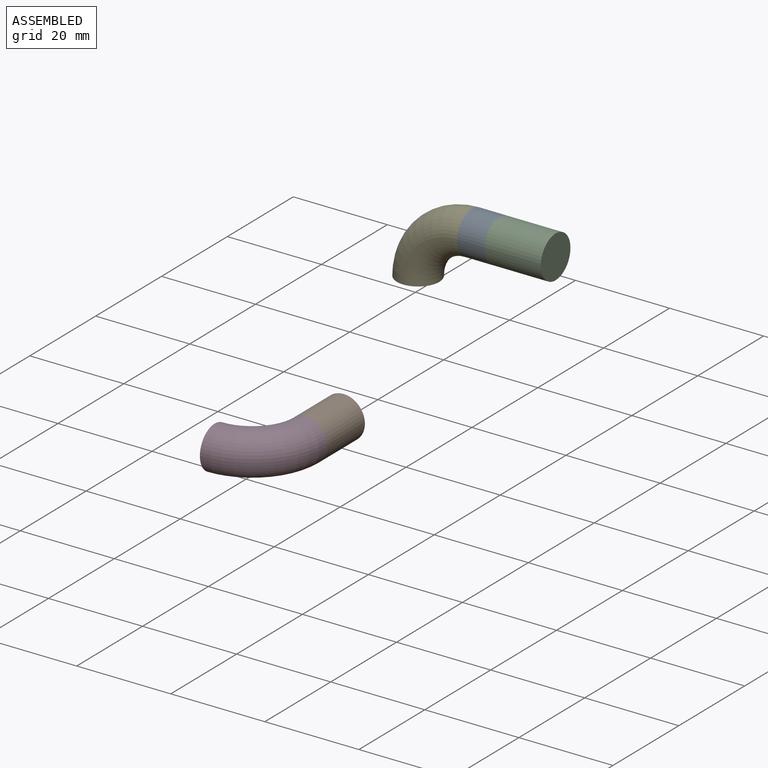
[diagram: assembled view]
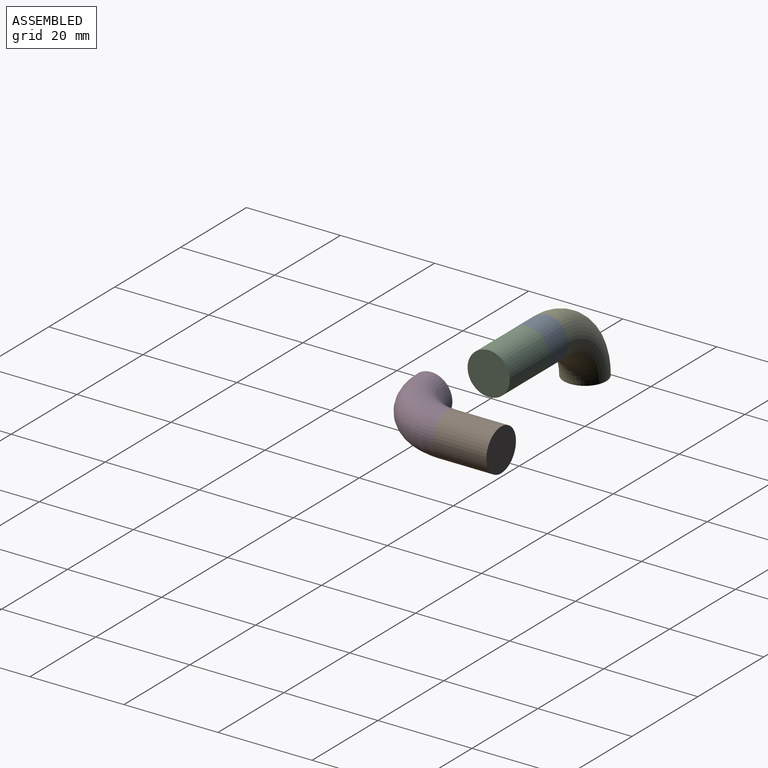
[diagram: assembled view, second angle]
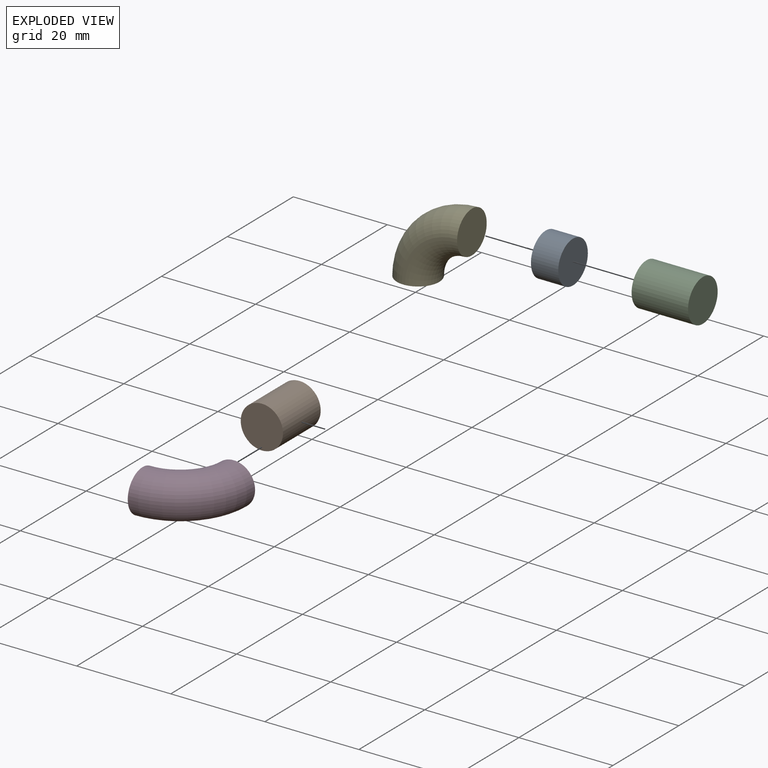
[diagram: exploded view]
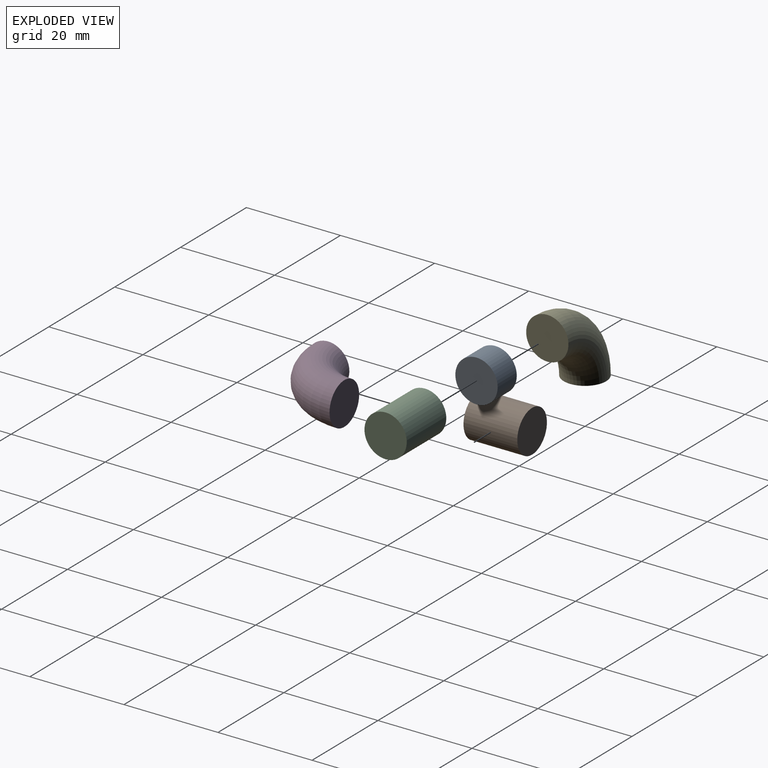
[diagram: exploded view, second angle]
ASSEMBLY  parts=5 mates=3
PART A: 3 faces, bbox 9x5.8x9 mm
  f0: cylinder r=4.5mm len=9mm, axis (0,1,0), area 164mm2, adj f1,f2
  f1: plane 9x9mm, normal (0,-1,0), area 63.6mm2, adj f0
  f2: plane 9x9mm, normal (0,1,0), area 63.6mm2, adj f0
PART B: 3 faces, bbox 9x11.4x9 mm
  f0: cylinder r=4.5mm len=11.44mm, axis (0,1,0), area 323.5mm2, adj f1,f2
  f1: plane 9x9mm, normal (0,-1,0), area 63.6mm2, adj f0
  f2: plane 9x9mm, normal (0,1,0), area 63.6mm2, adj f0
PART C: 3 faces, bbox 9x12x9 mm
  f0: cylinder r=4.5mm len=12mm, axis (0,1,0), area 339.3mm2, adj f1,f2
  f1: plane 9x9mm, normal (0,-1,0), area 63.6mm2, adj f0
  f2: plane 9x9mm, normal (0,1,0), area 63.6mm2, adj f0
PART D: 3 faces, bbox 17.2x9x17.2 mm
  f0: torus R=11.43mm, axis (0,-1,0), area 507.6mm2, adj f1,f2
  f1: plane 9x9mm, normal (1,0,0), area 63.6mm2, adj f0
  f2: plane 9x9mm, normal (0,0,-1), area 63.6mm2, adj f0
PART E: same geometry as D
PLACE A rot(axis=(0.58,0.58,-0.58),120deg) t=(5.8,5,95.43)mm
PLACE B t=(-13.67,-39.39,39.57)mm
PLACE C rot(axis=(0.71,0.71,0),180deg) t=(17.8,-32,71.43)mm
PLACE D rot(axis=(0.58,0.58,0.58),120deg) t=(-85.1,7.05,59.57)mm
PLACE E t=(57.87,0,0)mm
MATE fastened C.f0 <-> A.f0  axis (-1,0,0) through (5.8,-20,71.43)mm
MATE fastened A.f0 <-> E.f1  axis (-1,0,0) through (0,-20,71.43)mm
MATE fastened D.f1 <-> B.f0  axis (0,1,0) through (-13.67,-50.83,39.57)mm
